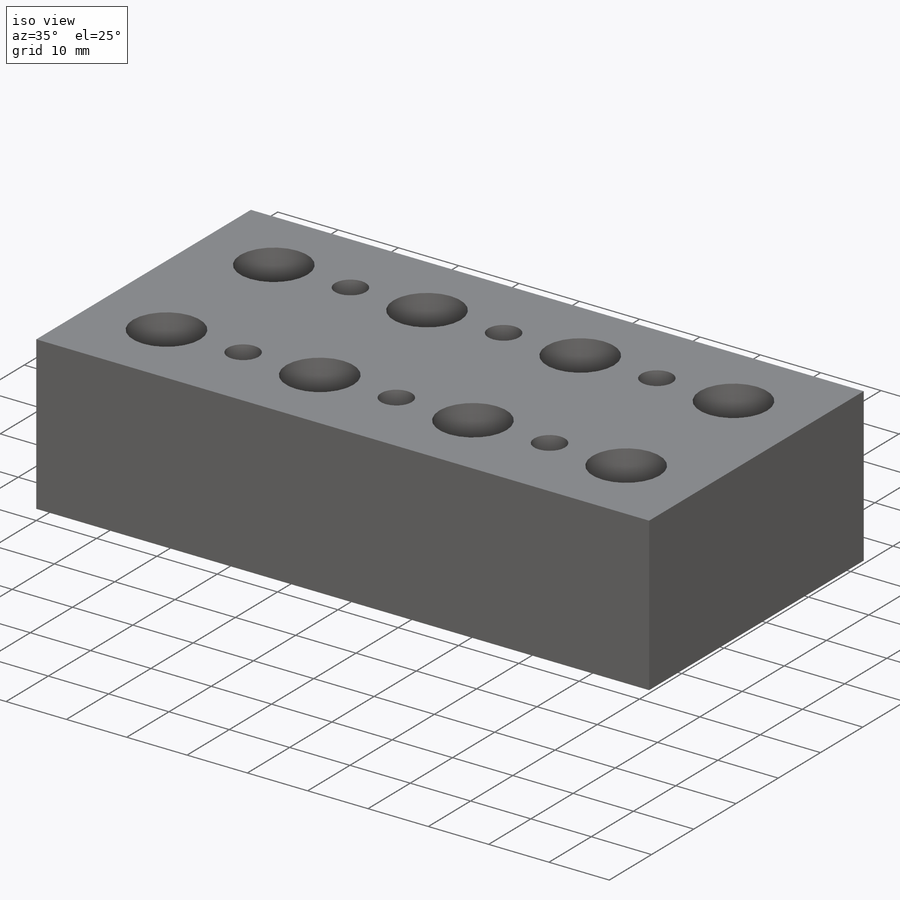
[diagram: iso view]
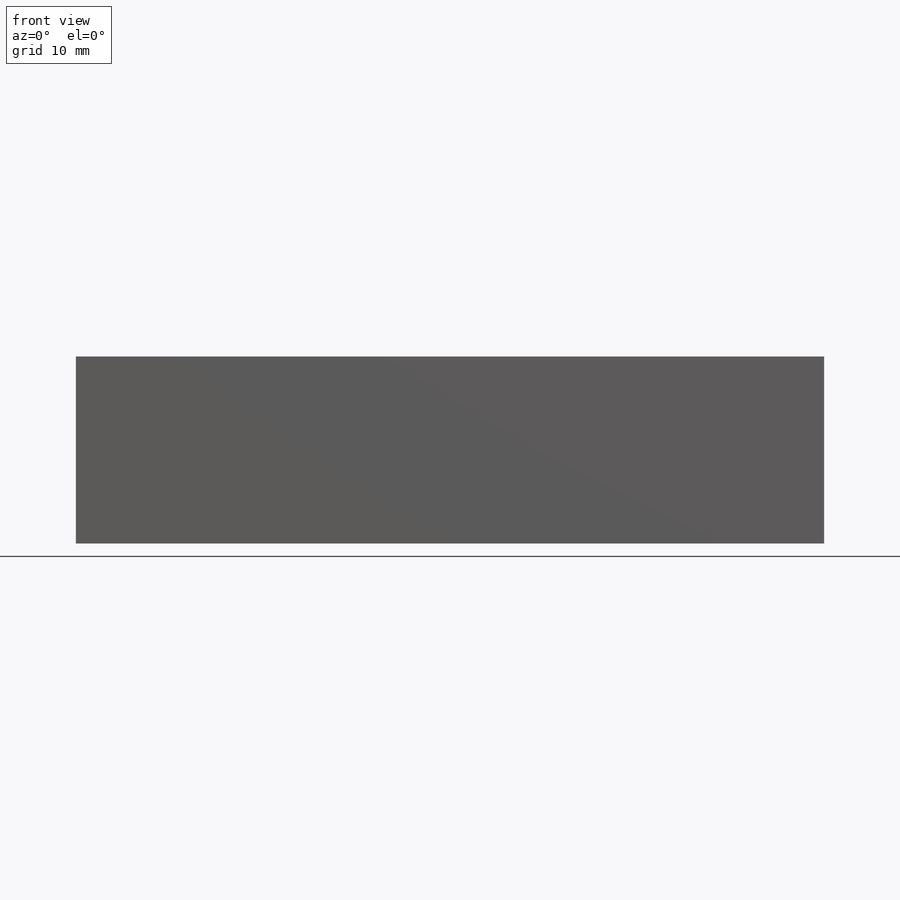
[diagram: front view]
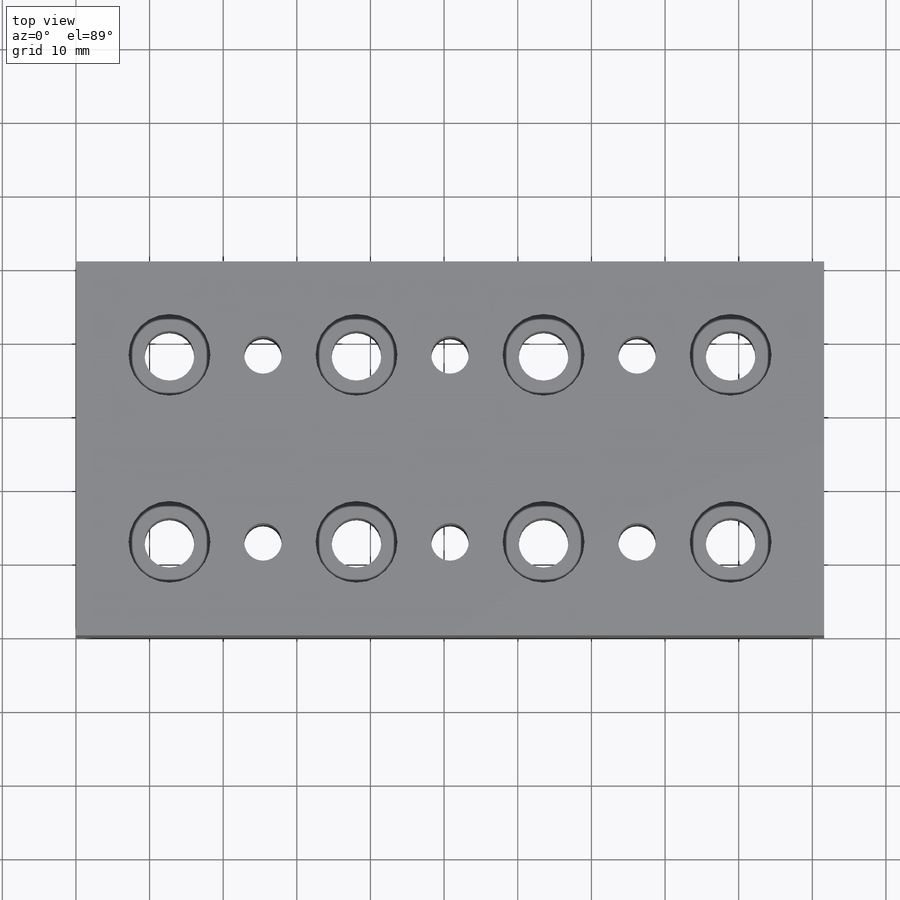
[diagram: top view]
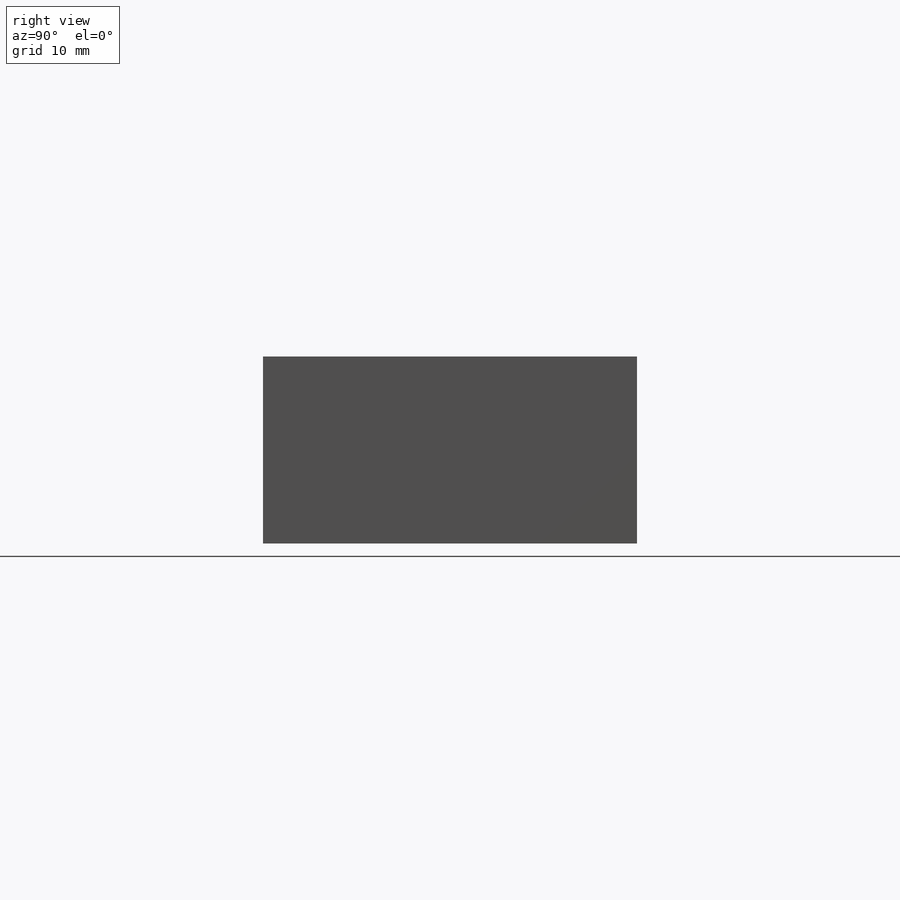
[diagram: right view]
SOLIDWORKS PART (.sldprt)
format: sldprt  version: not decoded by parser v0  size: 182,272 bytes
history: native  units: mm
features: sketch x5, hole x2, pattern_linear x2, material x1, extrude x1, thread x1 (+16 scaffold rows collapsed)
feature tree (28):
  scaffold x16  (default folders/planes/origin — collapsed)
  material  "Material <not specified>"
  sketch  "Sketch1"
  extrude  "Boss-Extrude1"  Depth=25.4mm
  hole  "CBORE for 1/4 Socket Head Cap Screw1"  Diameter=6.7564mm Depth=25.4mm
  sketch  "Sketch4"
  sketch  "Sketch3"  dims[hole-wizard template sketch: 44 standard entries collapsed; hole parameters kept: c12.C'Bore Depth=6.35mm]
  pattern_linear  "LPattern1"  Count1=2 Count2=4 Spacing1=25.4mm Spacing2=25.4mm
  hole  "1/4-20 Tapped Hole1"  Diameter=5.1054mm Depth=25.4mm
  sketch  "Sketch6"
  sketch  "Sketch5"  dims[hole-wizard template sketch: 60 standard entries collapsed; hole parameters kept: c18.Thru Tap Drill Depth=25.4mm]
  thread  "Hole Thread1"  Diameter=6.35mm  [1 undecoded]
  pattern_linear  "LPattern2"  Count1=2 Count2=3 Spacing1=25.4mm Spacing2=25.4mm
decode coverage: 8 of 11 modeling features carry decoded parameters
note: ~ marks probable driven/reference dimensions
note: 1 parameter value undecoded
note: suppression state not decoded; provenance and decode notes live in map.json
